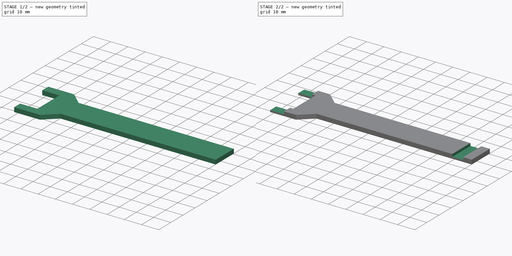
[diagram: build sequence overview — one tinted view per stage of 2, left to right]
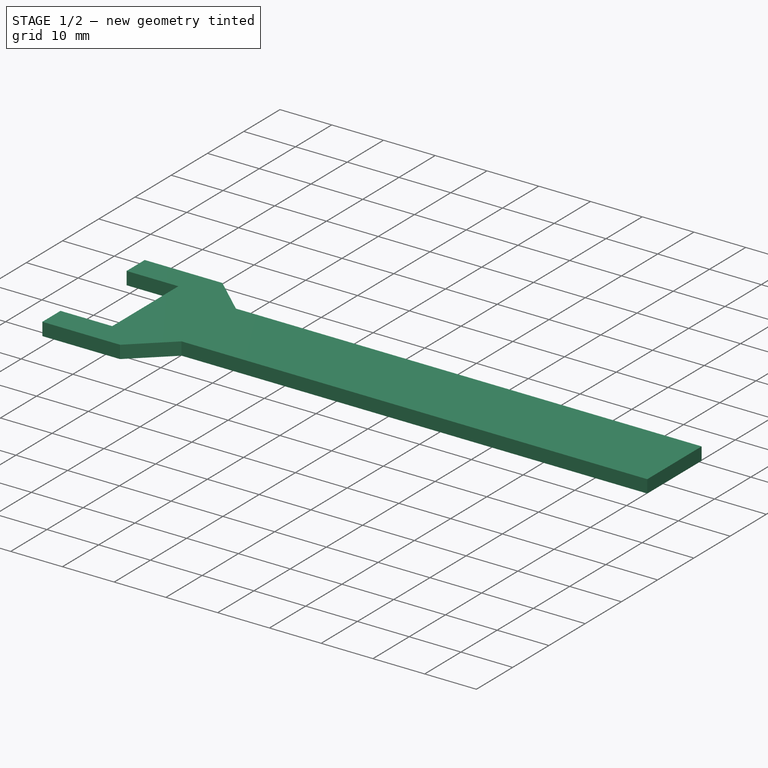
[diagram: stage 1 of 2 — iso view after this stage's code; geometry added in this stage tinted green]
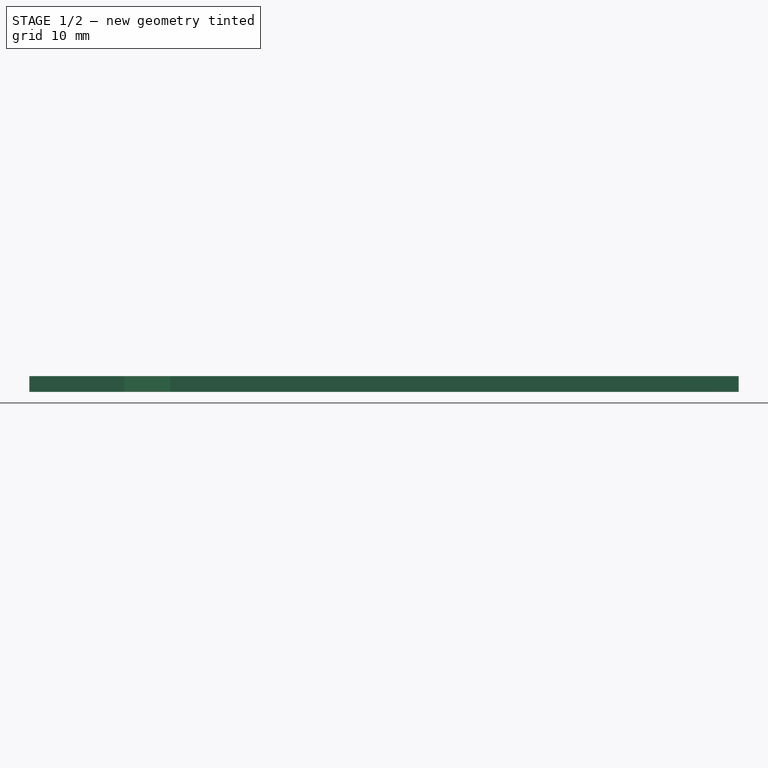
[diagram: stage 1 of 2 — front view after this stage's code; geometry added in this stage tinted green]
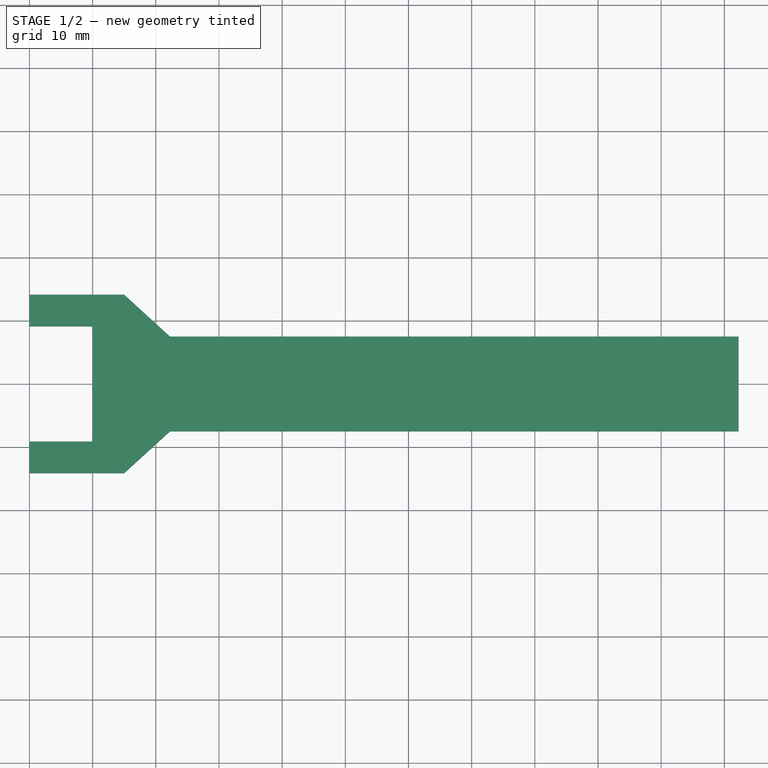
[diagram: stage 1 of 2 — top view after this stage's code; geometry added in this stage tinted green]
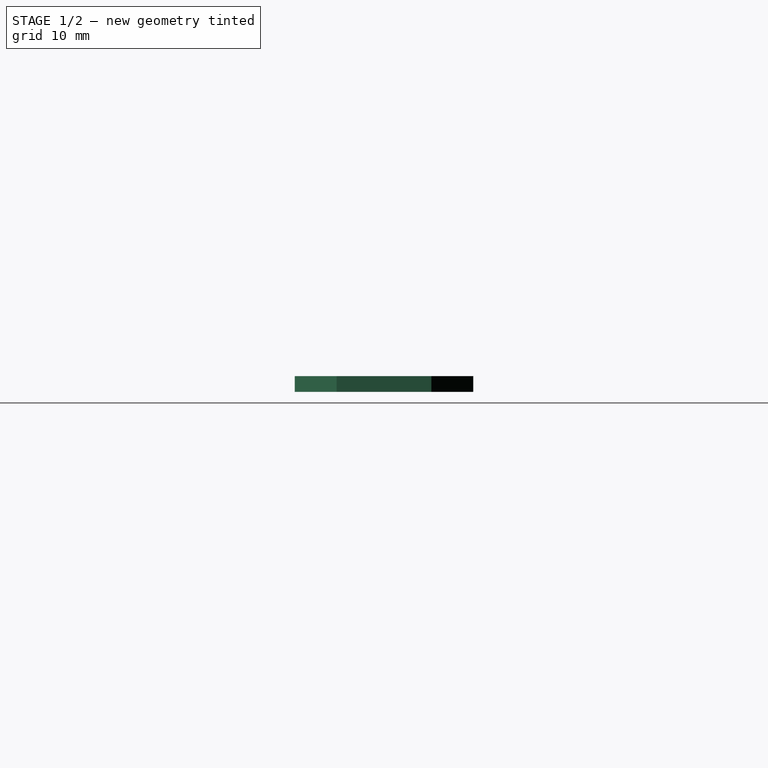
[diagram: stage 1 of 2 — right view after this stage's code; geometry added in this stage tinted green]
FCSTD DOCUMENT  (FreeCAD 0.15R4671 (Git))
Label: ConerFixer
License: All rights reserved
LicenseURL: http://es.wikipedia.org/wiki/Todos_los_derechos_reservados
objects: Sketcher::SketchObject×2, PartDesign::Pad×1, PartDesign::Pocket×1
note: 6 computed .brp shape members not serialized (recipe doc carries the construction recipe); baked Part::Feature solids carry a one-line shape summary decoded from their .brp

FEATURE [Sketcher::SketchObject] Sketch
  sketch-geometry (12):
    g0: LineSegment StartX=-10 StartY=14.125 StartZ=0 EndX=5 EndY=14.125 EndZ=0
    g1: LineSegment StartX=5 StartY=14.125 StartZ=0 EndX=12.25 EndY=7.5 EndZ=0
    g2: LineSegment StartX=12.25 StartY=7.5 StartZ=0 EndX=102.25 EndY=7.5 EndZ=0
    g3: LineSegment StartX=102.25 StartY=7.5 StartZ=0 EndX=102.25 EndY=-7.5 EndZ=0
    g4: LineSegment StartX=102.25 StartY=-7.5 StartZ=0 EndX=12.25 EndY=-7.5 EndZ=0
    g5: LineSegment StartX=12.25 StartY=-7.5 StartZ=0 EndX=5 EndY=-14.125 EndZ=0
    g6: LineSegment StartX=5 StartY=-14.125 StartZ=0 EndX=-10 EndY=-14.125 EndZ=0
    g7: LineSegment StartX=-10 StartY=-14.125 StartZ=0 EndX=-10 EndY=-9.125 EndZ=0
    g8: LineSegment StartX=-10 StartY=-9.125 StartZ=0 EndX=0 EndY=-9.125 EndZ=0
    g9: LineSegment StartX=0 StartY=-9.125 StartZ=0 EndX=0 EndY=9.125 EndZ=0
    g10: LineSegment StartX=0 StartY=9.125 StartZ=0 EndX=-10 EndY=9.125 EndZ=0
    g11: LineSegment StartX=-10 StartY=9.125 StartZ=0 EndX=-10 EndY=14.125 EndZ=0
  constraints (35):
    c: Horizontal(g0)
    c: Coincident(g0,g1)
    c: Coincident(g1,g2)
    c: Horizontal(g2)
    c: Coincident(g2,g3)
    c: Vertical(g3)
    c: Coincident(g3,g4)
    c: Horizontal(g4)
    c: Coincident(g4,g5)
    c: Coincident(g5,g6)
    c: Horizontal(g6)
    c: Coincident(g6,g7)
    c: Vertical(g7)
    c: Coincident(g7,g8)
    c: Horizontal(g8)
    c: Coincident(g8,g9)
    c: Coincident(g9,g10)
    c: Horizontal(g10)
    c: Coincident(g10,g11)
    c: Coincident(g11,g0)
    c: DistanceY(g9,g8) = -18.25
    c: DistanceX(g10,g9) = 10
    c: DistanceX(g7,g8) = 10
    c: DistanceY(g7,g6) = -5
    c: Vertical(g11)
    c: DistanceY(g0,g10) = -5
    c: DistanceX(g0,g0) = 15
    c: DistanceX(g6,g5) = 15
    c: Symmetric(g9,g8,g-1)
    c: DistanceY(g2,g3) = -15
    c: Symmetric(g2,g3,g-1)
    c: DistanceX(g9,g2) = 102.25
    c: DistanceX(g1,g2) = 90
    c: DistanceX(g4,g3) = 90
    c: Tangent(g9,g-2)
FEATURE [PartDesign::Pad] Pad
  Length = 2.5
  Length2 = 100
  Sketch = -> Sketch
  Type = 0
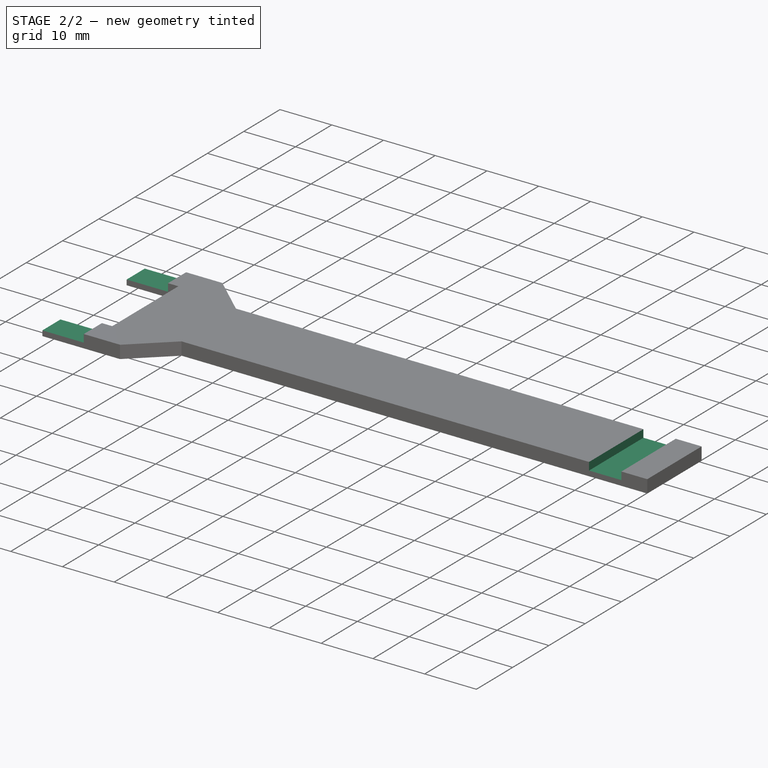
[diagram: stage 2 of 2 — iso view after this stage's code; geometry added in this stage tinted green]
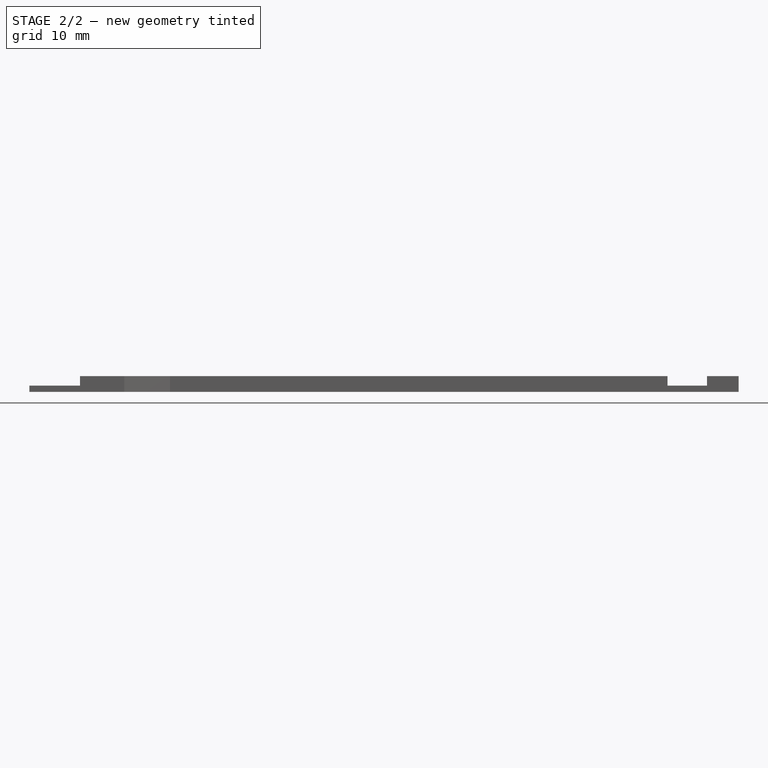
[diagram: stage 2 of 2 — front view after this stage's code; geometry added in this stage tinted green]
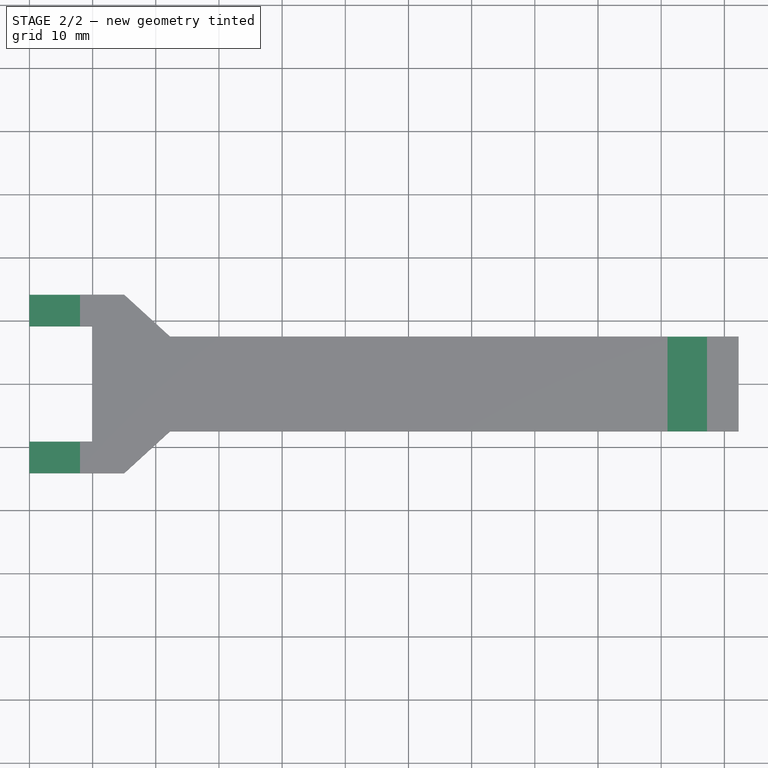
[diagram: stage 2 of 2 — top view after this stage's code; geometry added in this stage tinted green]
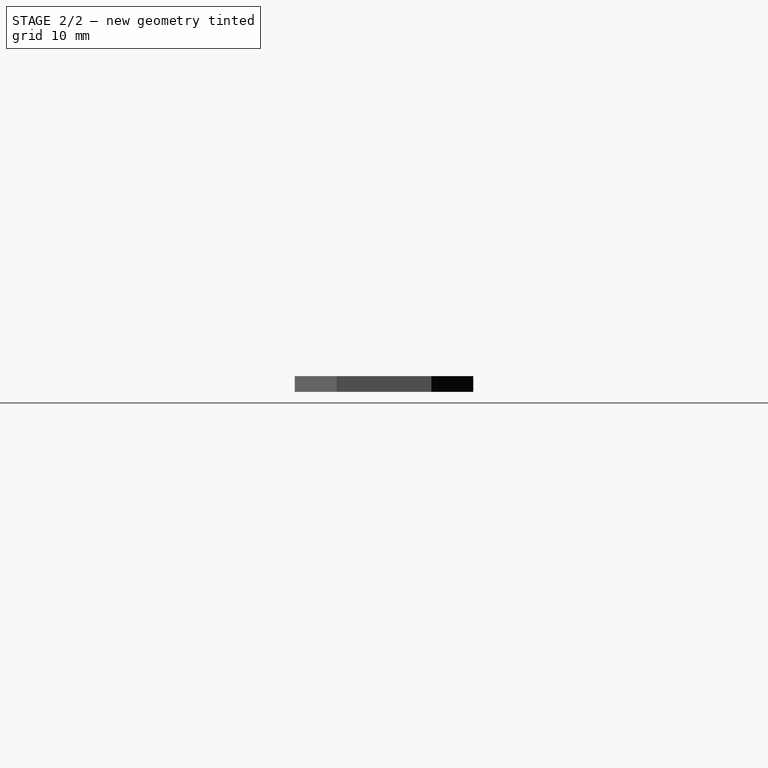
[diagram: stage 2 of 2 — right view after this stage's code; geometry added in this stage tinted green]
FEATURE [Sketcher::SketchObject] Sketch002
  ExternalGeometry = -> [Pad]
  Placement = pos=(0,0,2.5) rot=(0,0,1;0rad)
  Support = -> Pad [Face14]
  sketch-geometry (8):
    g0: LineSegment StartX=97.25 StartY=15 StartZ=0 EndX=91 EndY=15 EndZ=0
    g1: LineSegment StartX=91 StartY=15 StartZ=0 EndX=91 EndY=-15 EndZ=0
    g2: LineSegment StartX=91 StartY=-15 StartZ=0 EndX=97.25 EndY=-15 EndZ=0
    g3: LineSegment StartX=97.25 StartY=-15 StartZ=0 EndX=97.25 EndY=15 EndZ=0
    g4: LineSegment StartX=-12 StartY=17.5 StartZ=0 EndX=-2 EndY=17.5 EndZ=0
    g5: LineSegment StartX=-2 StartY=17.5 StartZ=0 EndX=-2 EndY=-17.5 EndZ=0
    g6: LineSegment StartX=-2 StartY=-17.5 StartZ=0 EndX=-12 EndY=-17.5 EndZ=0
    g7: LineSegment StartX=-12 StartY=-17.5 StartZ=0 EndX=-12 EndY=17.5 EndZ=0
  constraints (24):
    c: Coincident(g0,g1)
    c: Coincident(g1,g2)
    c: Coincident(g2,g3)
    c: Coincident(g3,g0)
    c: Horizontal(g0)
    c: Horizontal(g2)
    c: Vertical(g1)
    c: Vertical(g3)
    c: Symmetric(g2,g0,g-1)
    c: DistanceX(g0) = -6.25
    c: DistanceX(g0,g-3) = -91
    c: DistanceY(g3) = 30
    c: Coincident(g4,g5)
    c: Coincident(g5,g6)
    c: Coincident(g6,g7)
    c: Coincident(g7,g4)
    c: Horizontal(g4)
    c: Horizontal(g6)
    c: Vertical(g5)
    c: Vertical(g7)
    c: DistanceX(g4,g-3) = 2
    c: DistanceX(g4,g4) = 10
    c: DistanceY(g7) = 35
    c: Symmetric(g4,g6,g-1)
FEATURE [PartDesign::Pocket] Pocket  label="CornerFixer"
  Length = 1.5
  Sketch = -> Sketch002
  Type = 0
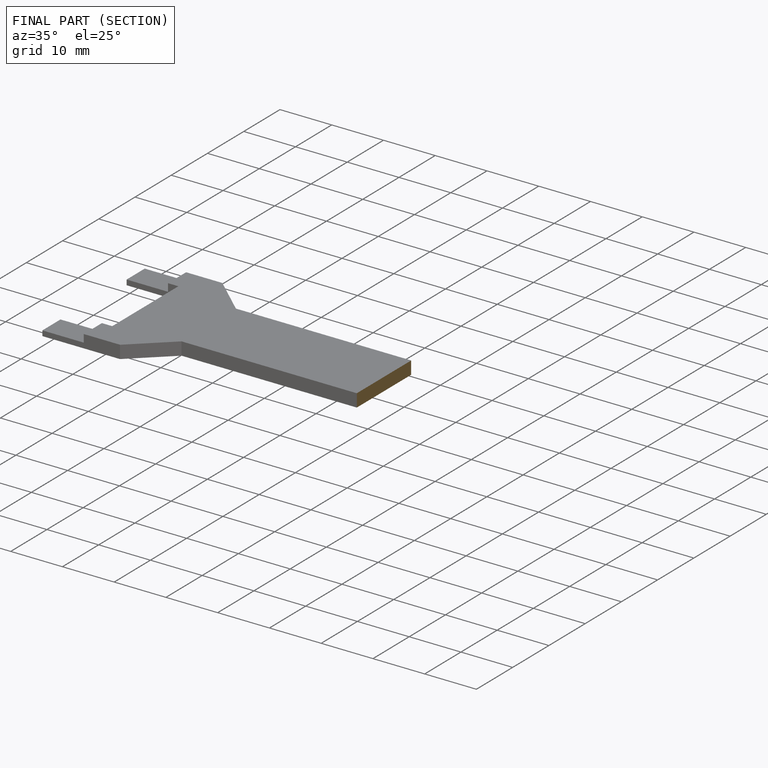
[diagram: finished part — half-section view (interior)]
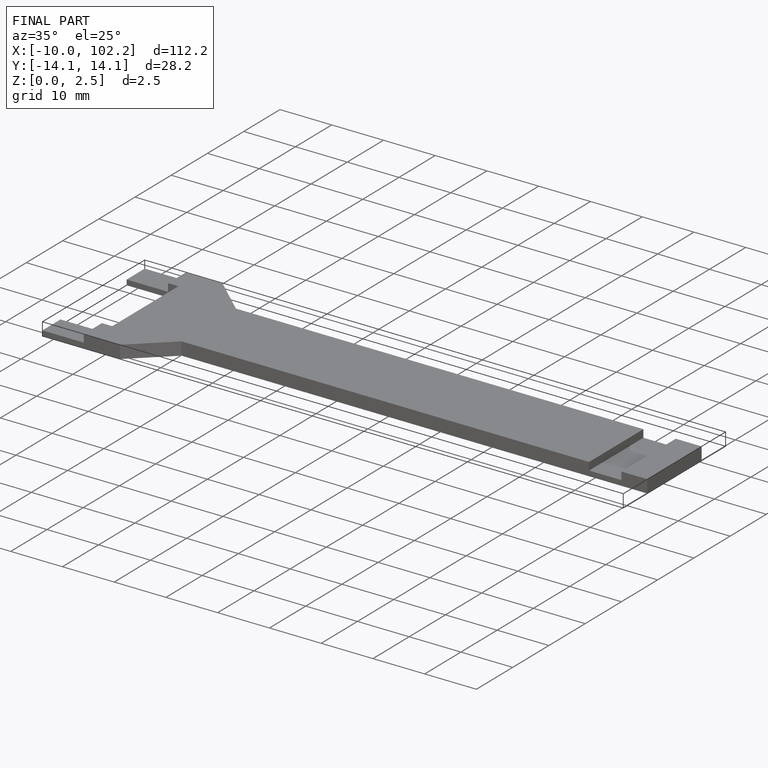
[diagram: finished part — iso view with bounding-box wireframe]
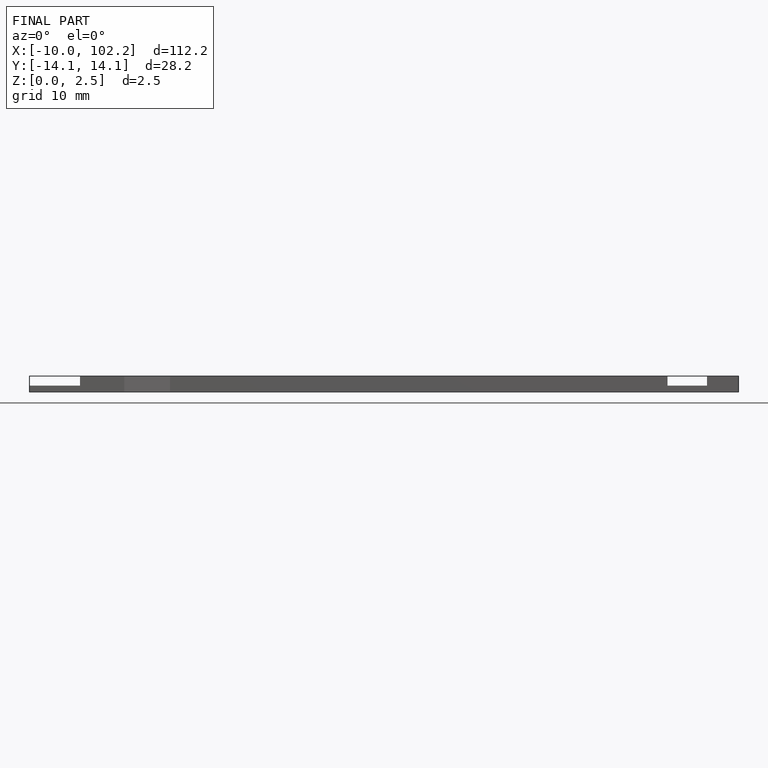
[diagram: finished part — front view with bounding-box wireframe]
